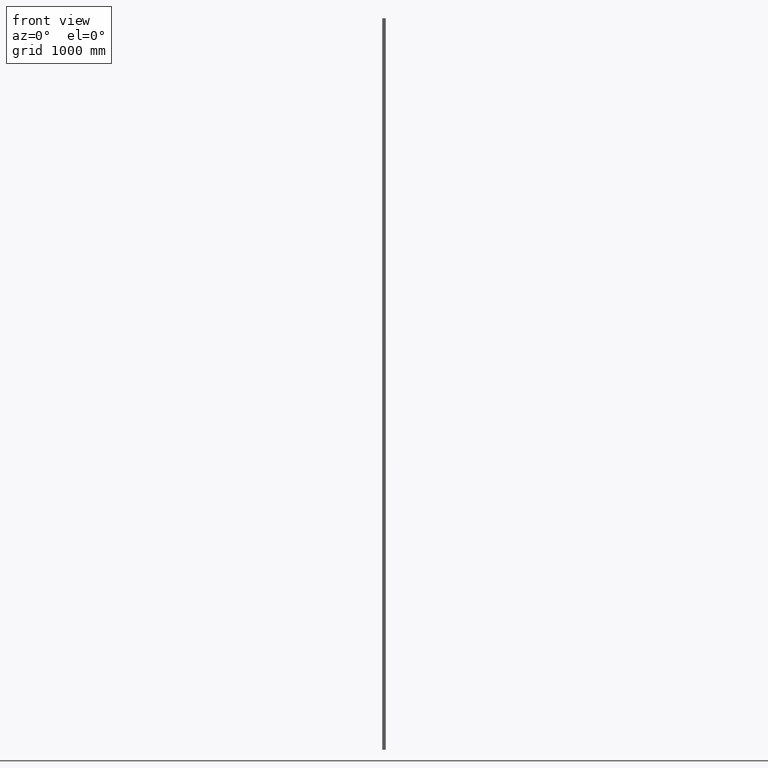
[diagram: clean part render]
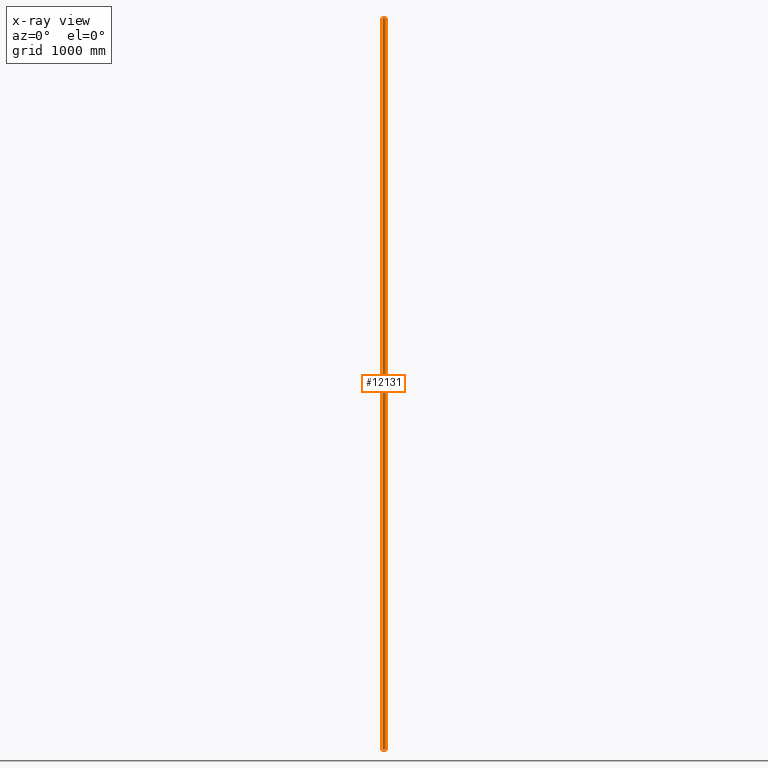
[diagram: x-ray — body ghosted, one internal face saturated and labeled with its STEP entity id]
A machine part, front view, then the same camera in x-ray: the body is ghosted and one INTERNAL B-rep face — a face not visible from any outside direction — is saturated and labeled: STEP entity #12131.
In plain terms, the highlighted planar face has unit normal (0, 1, -0).
Its self-contained STEP definition (entity closure, byte-faithful):
#252 = CARTESIAN_POINT ( 'NONE',  ( -12.00000000000000178, 24.00000000000000000, 3000.000000000000000 ) ) ;
#732 = DIRECTION ( 'NONE',  ( 1.000000000000000000, -1.445602896647339163E-16, 0.000000000000000000 ) ) ;
#1155 = DIRECTION ( 'NONE',  ( 1.445602896647339163E-16, 1.000000000000000000, -0.000000000000000000 ) ) ;
#1180 = VERTEX_POINT ( 'NONE', #8173 ) ;
#1317 = EDGE_CURVE ( 'NONE', #3429, #1180, #10969, .T. ) ;
#2235 = LINE ( 'NONE', #3536, #14785 ) ;
#2308 = DIRECTION ( 'NONE',  ( -1.000000000000000000, 1.445602896647339163E-16, 0.000000000000000000 ) ) ;
#2597 = CARTESIAN_POINT ( 'NONE',  ( 11.99999999999999822, 23.99999999999999645, 3000.000000000000000 ) ) ;
#3171 = ORIENTED_EDGE ( 'NONE', *, *, #13433, .F. ) ;
#3245 = ORIENTED_EDGE ( 'NONE', *, *, #9953, .T. ) ;
#3429 = VERTEX_POINT ( 'NONE', #2597 ) ;
#3536 = CARTESIAN_POINT ( 'NONE',  ( -12.00000000000000178, 24.00000000000000000, -3000.000000000000000 ) ) ;
#4723 = CARTESIAN_POINT ( 'NONE',  ( -12.00000000000000178, 24.00000000000000000, -3000.000000000000000 ) ) ;
#5197 = LINE ( 'NONE', #7597, #5882 ) ;
#5882 = VECTOR ( 'NONE', #8944, 1000.000000000000000 ) ;
#6201 = DIRECTION ( 'NONE',  ( -0.000000000000000000, -0.000000000000000000, -1.000000000000000000 ) ) ;
#6352 = EDGE_CURVE ( 'NONE', #13614, #1180, #2235, .T. ) ;
#6670 = CARTESIAN_POINT ( 'NONE',  ( -12.00000000000000178, 24.00000000000000000, 3000.000000000000000 ) ) ;
#6834 = AXIS2_PLACEMENT_3D ( 'NONE', #6670, #1155, #2308 ) ;
#7597 = CARTESIAN_POINT ( 'NONE',  ( -12.00000000000000178, 24.00000000000000000, 3000.000000000000000 ) ) ;
#7866 = PLANE ( 'NONE',  #6834 ) ;
#8020 = DIRECTION ( 'NONE',  ( 1.000000000000000000, -1.445602896647339163E-16, 0.000000000000000000 ) ) ;
#8173 = CARTESIAN_POINT ( 'NONE',  ( 11.99999999999999822, 23.99999999999999645, -3000.000000000000000 ) ) ;
#8650 = EDGE_LOOP ( 'NONE', ( #13288, #9613, #3171, #3245 ) ) ;
#8944 = DIRECTION ( 'NONE',  ( -0.000000000000000000, -0.000000000000000000, -1.000000000000000000 ) ) ;
#9613 = ORIENTED_EDGE ( 'NONE', *, *, #1317, .F. ) ;
#9703 = CARTESIAN_POINT ( 'NONE',  ( 11.99999999999999822, 23.99999999999999645, 3000.000000000000000 ) ) ;
#9953 = EDGE_CURVE ( 'NONE', #13039, #13614, #5197, .T. ) ;
#10969 = LINE ( 'NONE', #9703, #12776 ) ;
#11082 = FACE_OUTER_BOUND ( 'NONE', #8650, .T. ) ;
#11760 = VECTOR ( 'NONE', #732, 1000.000000000000000 ) ;
#12131 = ADVANCED_FACE ( 'NONE', ( #11082 ), #7866, .F. ) ;
#12776 = VECTOR ( 'NONE', #6201, 1000.000000000000000 ) ;
#13039 = VERTEX_POINT ( 'NONE', #252 ) ;
#13288 = ORIENTED_EDGE ( 'NONE', *, *, #6352, .T. ) ;
#13433 = EDGE_CURVE ( 'NONE', #13039, #3429, #13926, .T. ) ;
#13614 = VERTEX_POINT ( 'NONE', #4723 ) ;
#13926 = LINE ( 'NONE', #14495, #11760 ) ;
#14495 = CARTESIAN_POINT ( 'NONE',  ( -12.00000000000000178, 24.00000000000000000, 3000.000000000000000 ) ) ;
#14785 = VECTOR ( 'NONE', #8020, 1000.000000000000000 ) ;